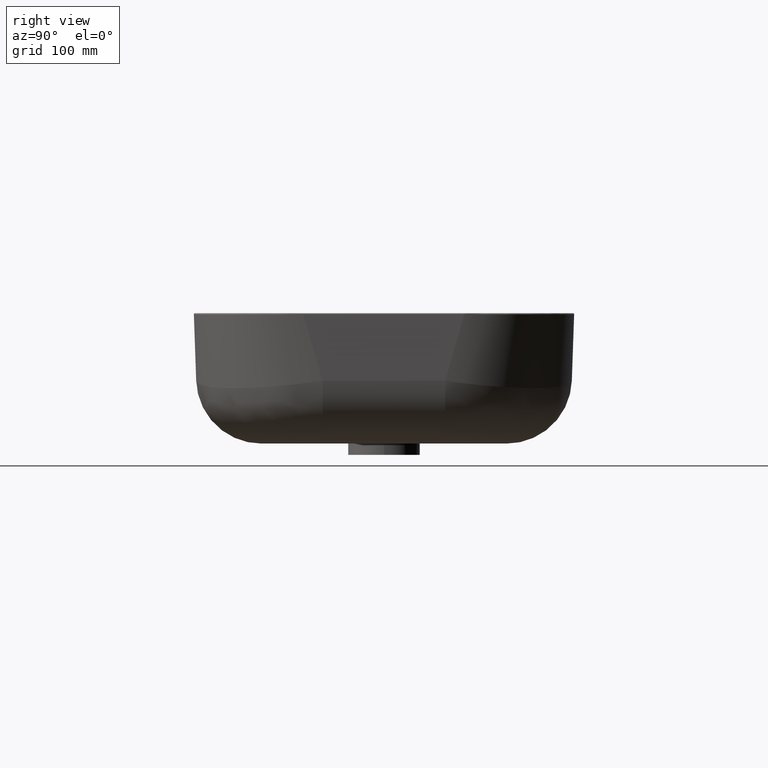
[diagram: clean part render]
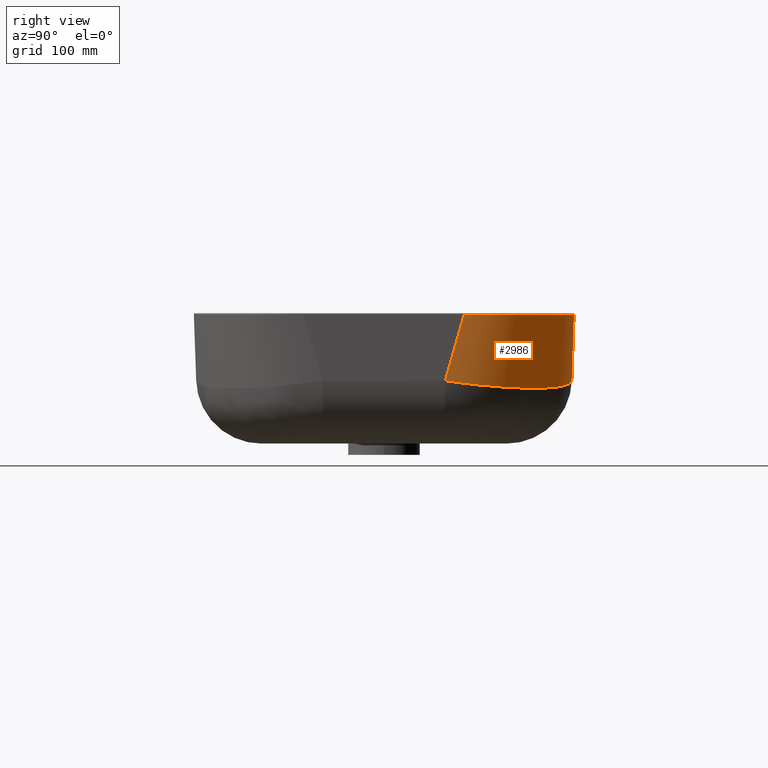
[diagram: same view with one face highlighted and labeled with its STEP entity id]
A machine part, right view. The second image highlights one B-rep face of the part: STEP entity #2986.
In plain terms, the highlighted face is a freeform B-spline surface patch.
Its self-contained STEP definition (entity closure, byte-faithful):
#40 = CARTESIAN_POINT ( 'NONE',  ( 494.6226616274452681, 343.5130189848187001, 118.8836847969458290 ) ) ;
#205 = CARTESIAN_POINT ( 'NONE',  ( 553.5496829545714945, 284.6593909081880156, 118.8835063547442132 ) ) ;
#234 = CARTESIAN_POINT ( 'NONE',  ( 558.0076850953369103, 268.8050176214856606, 118.9151225033961907 ) ) ;
#257 = EDGE_CURVE ( 'NONE', #2701, #626, #3237, .T. ) ;
#265 = CARTESIAN_POINT ( 'NONE',  ( 554.6486898817103111, 281.5869382758809252, 118.8888849249055255 ) ) ;
#274 = CARTESIAN_POINT ( 'NONE',  ( 514.9521749080662403, 333.1398776583613426, 118.8562121057850192 ) ) ;
#322 = CARTESIAN_POINT ( 'NONE',  ( 552.0542123512141188, 288.2907473426280944, 118.8775967239417213 ) ) ;
#406 = CARTESIAN_POINT ( 'NONE',  ( 508.1322332380302669, 337.2958069788901412, 118.8634930613243768 ) ) ;
#436 = CARTESIAN_POINT ( 'NONE',  ( 478.2900577840493384, 348.1086176416018816, 118.9162714177092965 ) ) ;
#465 = CARTESIAN_POINT ( 'NONE',  ( 474.7613127909557988, 348.7294001131896835, 118.9243044122849966 ) ) ;
#475 = CARTESIAN_POINT ( 'NONE',  ( 551.5709954009269040, 179.9179236217250093, -121.3751106219060034 ) ) ;
#507 = CARTESIAN_POINT ( 'NONE',  ( 523.5824823054120998, 313.5823857226351379, 50.76123870990382159 ) ) ;
#557 = CARTESIAN_POINT ( 'NONE',  ( 506.2542628416718458, 327.9682451882743521, 51.18840075130933087 ) ) ;
#622 = CARTESIAN_POINT ( 'NONE',  ( 552.2657158202753180, 287.7819637615290844, 118.8784200418203909 ) ) ;
#626 = VERTEX_POINT ( 'NONE', #2698 ) ;
#676 = CARTESIAN_POINT ( 'NONE',  ( 540.6583188638106776, 308.5313438726268487, 118.8531681511065727 ) ) ;
#685 = CARTESIAN_POINT ( 'NONE',  ( 514.5281452977825438, 333.4198053468054468, 118.8566081743460927 ) ) ;
#735 = CARTESIAN_POINT ( 'NONE',  ( 556.0871954728741002, 276.8280659342074728, 118.8980893763537807 ) ) ;
#750 = CARTESIAN_POINT ( 'NONE',  ( 464.6210184500533842, 346.0383391607072099, 54.66286024756106343 ) ) ;
#765 =( BOUNDED_SURFACE ( )  B_SPLINE_SURFACE ( 1, 2, ( 
 ( #3723, #2454, #3313 ),
 ( #475, #4588, #2954 ) ),
 .UNSPECIFIED., .F., .F., .F. ) 
 B_SPLINE_SURFACE_WITH_KNOTS ( ( 2, 2 ),
 ( 3, 3 ),
 ( -96.27114962209380167, 262.2560246895910154 ),
 ( 0.0000000000000000000, 1233.219101284679937 ),
 .UNSPECIFIED. ) 
 GEOMETRIC_REPRESENTATION_ITEM ( )  RATIONAL_B_SPLINE_SURFACE ( (
 ( 1.000000000000000000, 0.7075372692918450168, 1.000000000000000000),
 ( 1.000000000000000000, 0.7075372692916830353, 1.000000000000000000) ) ) 
 REPRESENTATION_ITEM ( '' )  SURFACE ( )  );
#793 = CARTESIAN_POINT ( 'NONE',  ( 497.2887189319681056, 342.4681027576601764, 118.8792236088690970 ) ) ;
#822 = CARTESIAN_POINT ( 'NONE',  ( 503.7456869461508404, 339.6321721755533076, 118.8691502923881700 ) ) ;
#844 = CARTESIAN_POINT ( 'NONE',  ( 458.8864686369830110, 349.9638605131640361, 118.9651005014720084 ) ) ;
#870 = CARTESIAN_POINT ( 'NONE',  ( 475.5459616438919852, 348.6029774322093431, 118.9224908625455441 ) ) ;
#966 = CARTESIAN_POINT ( 'NONE',  ( 556.0383248771864828, 254.6210755530328811, 54.66285166549096175 ) ) ;
#1032 = CARTESIAN_POINT ( 'NONE',  ( 557.6125332656332603, 270.7045013069488277, 118.9109291053011930 ) ) ;
#1059 = CARTESIAN_POINT ( 'NONE',  ( 558.0414920261345060, 268.6338744635806393, 118.9155044960567693 ) ) ;
#1089 = CARTESIAN_POINT ( 'NONE',  ( 557.9712768202771258, 268.9878714406821700, 118.9147150126086956 ) ) ;
#1118 = CARTESIAN_POINT ( 'NONE',  ( 558.0335226708189111, 268.6743293922990574, 118.9154141519252050 ) ) ;
#1148 = CARTESIAN_POINT ( 'NONE',  ( 542.6228237090386983, 305.7251266379826689, 118.8555088241444793 ) ) ;
#1206 = CARTESIAN_POINT ( 'NONE',  ( 497.5877989810080066, 342.3456993801636372, 118.8787352075023165 ) ) ;
#1231 = CARTESIAN_POINT ( 'NONE',  ( 485.2417860426663196, 346.5666942653826936, 118.9011562423023634 ) ) ;
#1256 = CARTESIAN_POINT ( 'NONE',  ( 535.0077419820398745, 315.6850333066621488, 118.8490037897670533 ) ) ;
#1314 = CARTESIAN_POINT ( 'NONE',  ( 513.4164755462941230, 334.1386975105848478, 118.8576830433702725 ) ) ;
#1331 = EDGE_CURVE ( 'NONE', #3665, #3819, #1660, .T. ) ;
#1448 = CARTESIAN_POINT ( 'NONE',  ( 551.5188123380273737, 289.5439922137654207, 118.8756040972147758 ) ) ;
#1477 = CARTESIAN_POINT ( 'NONE',  ( 542.9122344967258869, 305.2941050876492568, 118.8558998350976026 ) ) ;
#1546 = CARTESIAN_POINT ( 'NONE',  ( 509.5690219032090909, 336.4841801439258688, 118.8617808539033405 ) ) ;
#1644 = CARTESIAN_POINT ( 'NONE',  ( 490.0006568275196059, 345.1281886419528178, 118.8919521247005662 ) ) ;
#1660 = B_SPLINE_CURVE_WITH_KNOTS ( 'NONE', 1,
 ( #3271, #2328 ),
 .UNSPECIFIED., .F., .F.,
 ( 2, 2 ),
 ( 4.837289621629359715, 70.23520438177681058 ),
 .UNSPECIFIED. ) ;
#1677 = CARTESIAN_POINT ( 'NONE',  ( 528.1360905235212613, 322.7860613039947566, 118.8484275946211568 ) ) ;
#1714 = CARTESIAN_POINT ( 'NONE',  ( 557.7909938924736934, 239.1715185141400468, 56.72613767485887593 ) ) ;
#1730 = CARTESIAN_POINT ( 'NONE',  ( 512.3805834213817434, 334.7925271765995490, 118.8587257129376695 ) ) ;
#1737 = EDGE_CURVE ( 'NONE', #626, #3819, #2718, .T. ) ;
#1892 = CARTESIAN_POINT ( 'NONE',  ( 559.9635201121262753, 252.3906706783388643, 118.9553526911204528 ) ) ;
#1920 = CARTESIAN_POINT ( 'NONE',  ( 552.1954668353835132, 287.9516978694013005, 118.8781446380375542 ) ) ;
#1947 = CARTESIAN_POINT ( 'NONE',  ( 557.1420622434551433, 272.7671636856327382, 118.9064801550665038 ) ) ;
#1953 = CARTESIAN_POINT ( 'NONE',  ( 458.8864686369830110, 349.9638605131640361, 118.9651005014720084 ) ) ;
#1956 = CARTESIAN_POINT ( 'NONE',  ( 515.0368032757321544, 333.0837231165843946, 118.8561337326524665 ) ) ;
#2006 = CARTESIAN_POINT ( 'NONE',  ( 552.3157403096754479, 287.6606407512855412, 118.8786173398201100 ) ) ;
#2095 = CARTESIAN_POINT ( 'NONE',  ( 520.5605787544358236, 329.2078228566676330, 118.8515428468059554 ) ) ;
#2120 = CARTESIAN_POINT ( 'NONE',  ( 495.7518755682109486, 343.0799036015534966, 118.8817720741706694 ) ) ;
#2148 = CARTESIAN_POINT ( 'NONE',  ( 478.5391298868029253, 348.0600940882452505, 118.9157142640219860 ) ) ;
#2161 = CARTESIAN_POINT ( 'NONE',  ( 537.9682155095199505, 296.2543244950546750, 51.18839592945193573 ) ) ;
#2307 = CARTESIAN_POINT ( 'NONE',  ( 542.9993555035312056, 305.1636029571741915, 118.8560194526906173 ) ) ;
#2328 = CARTESIAN_POINT ( 'NONE',  ( 557.8316307937110423, 231.3648263209950073, 57.90603019785000072 ) ) ;
#2332 = CARTESIAN_POINT ( 'NONE',  ( 541.1438508965341043, 307.8577951968727575, 118.8536931192411998 ) ) ;
#2359 = CARTESIAN_POINT ( 'NONE',  ( 550.6656147524814742, 291.4546139879212774, 118.8726623002384173 ) ) ;
#2368 = CARTESIAN_POINT ( 'NONE',  ( 514.8251463354354200, 333.2240278610818223, 118.8563300701727741 ) ) ;
#2390 = CARTESIAN_POINT ( 'NONE',  ( 542.9699103553087980, 305.2077601802622553, 118.8559788972730757 ) ) ;
#2418 = CARTESIAN_POINT ( 'NONE',  ( 557.3360852748401157, 271.9451337426970099, 118.9082360458653369 ) ) ;
#2436 = CARTESIAN_POINT ( 'NONE',  ( 486.4346659688747536, 338.9538922241155205, 52.48019965371114637 ) ) ;
#2454 = CARTESIAN_POINT ( 'NONE',  ( 563.1663778646827723, 353.1663778646840797, 210.6731985225079029 ) ) ;
#2477 = CARTESIAN_POINT ( 'NONE',  ( 476.7096174260833550, 348.4017600691870484, 118.9198347562197569 ) ) ;
#2534 = CARTESIAN_POINT ( 'NONE',  ( 478.6089529473249513, 348.0463930236344368, 118.9155582410128744 ) ) ;
#2578 = ORIENTED_EDGE ( 'NONE', *, *, #4238, .T. ) ;
#2698 = CARTESIAN_POINT ( 'NONE',  ( 441.3648262423299684, 347.8316307937089960, 57.90603019778689742 ) ) ;
#2701 = VERTEX_POINT ( 'NONE', #4722 ) ;
#2718 = B_SPLINE_CURVE_WITH_KNOTS ( 'NONE', 3,
 ( #5368, #2857, #750, #2436, #557, #507, #2161, #4772, #966, #1714, #4285 ),
 .UNSPECIFIED., .F., .F.,
 ( 4, 1, 1, 1, 1, 1, 1, 1, 4 ),
 ( 0.0000000000000000000, 0.1250000000000047740, 0.2500000000000096589, 0.3750000000000155986, 0.5000000000000204281, 0.6250000000000354161, 0.7500000000000489608, 0.8750000000000640599, 1.000000000000000000 ),
 .UNSPECIFIED. ) ;
#2726 = CARTESIAN_POINT ( 'NONE',  ( 551.7686868380682199, 288.9671570488660564, 118.8765126357600508 ) ) ;
#2739 = ORIENTED_EDGE ( 'NONE', *, *, #1737, .F. ) ;
#2753 = CARTESIAN_POINT ( 'NONE',  ( 559.1213179907888389, 262.4121247874055598, 118.9296786734247462 ) ) ;
#2810 = CARTESIAN_POINT ( 'NONE',  ( 548.8533135957518425, 295.2080066537104699, 118.8672660093028384 ) ) ;
#2841 = CARTESIAN_POINT ( 'NONE',  ( 541.8596611147012254, 306.8383522975662459, 118.8545381137923300 ) ) ;
#2857 = CARTESIAN_POINT ( 'NONE',  ( 449.1715551292240320, 347.7910034381376931, 56.72612123981357968 ) ) ;
#2881 = CARTESIAN_POINT ( 'NONE',  ( 557.8316307937110423, 231.3648263209950073, 57.90603019785000072 ) ) ;
#2896 = CARTESIAN_POINT ( 'NONE',  ( 517.8872696435065563, 331.1861292577908671, 118.8535083935210679 ) ) ;
#2924 = CARTESIAN_POINT ( 'NONE',  ( 500.7195065460217052, 341.0581320849710210, 118.8736335815106884 ) ) ;
#2946 = CARTESIAN_POINT ( 'NONE',  ( 538.1577973275230988, 311.8416999153897677, 118.8509096011185306 ) ) ;
#2954 = CARTESIAN_POINT ( 'NONE',  ( 389.9179236217249809, 341.5709954009259945, -121.3751106219060034 ) ) ;
#2975 = CARTESIAN_POINT ( 'NONE',  ( 496.3137888270611597, 342.8605040412963376, 118.8808302352220494 ) ) ;
#2986 = ADVANCED_FACE ( 'NONE', ( #4222 ), #765, .T. ) ;
#3002 = CARTESIAN_POINT ( 'NONE',  ( 513.9317480685288047, 333.8090546643852008, 118.8571759632338285 ) ) ;
#3134 = CARTESIAN_POINT ( 'NONE',  ( 559.7833003935724037, 255.8116283459109752, 118.9462020281323902 ) ) ;
#3161 = CARTESIAN_POINT ( 'NONE',  ( 558.6398054707607344, 265.5915615781140104, 118.9223008071109717 ) ) ;
#3190 = CARTESIAN_POINT ( 'NONE',  ( 551.0123028177688411, 290.6936088215713312, 118.8738158854996385 ) ) ;
#3226 = CARTESIAN_POINT ( 'NONE',  ( 515.0781280057494769, 333.0562582621719798, 118.8560955658471840 ) ) ;
#3237 = B_SPLINE_CURVE_WITH_KNOTS ( 'NONE', 1,
 ( #1953, #3336 ),
 .UNSPECIFIED., .F., .F.,
 ( 2, 2 ),
 ( 4.837289615865450365, 70.23520438185100545 ),
 .UNSPECIFIED. ) ;
#3248 = CARTESIAN_POINT ( 'NONE',  ( 542.8256207826480022, 305.4235545718742628, 118.8557816562108940 ) ) ;
#3271 = CARTESIAN_POINT ( 'NONE',  ( 559.9638605130840006, 248.8864686193730051, 118.9651004991659846 ) ) ;
#3313 = CARTESIAN_POINT ( 'NONE',  ( 485.9758020591129934, 353.2603940462009859, 213.3654697091540129 ) ) ;
#3334 = CARTESIAN_POINT ( 'NONE',  ( 497.5197680262630797, 342.3736195879080242, 118.8788461373718661 ) ) ;
#3336 = CARTESIAN_POINT ( 'NONE',  ( 441.3648262423299684, 347.8316307937089960, 57.90603019778689742 ) ) ;
#3361 = CARTESIAN_POINT ( 'NONE',  ( 472.3819928271872755, 349.0837797202744923, 118.9298895673267680 ) ) ;
#3389 = CARTESIAN_POINT ( 'NONE',  ( 462.3906144750641829, 349.9635200938794810, 118.9553521686295738 ) ) ;
#3421 = CARTESIAN_POINT ( 'NONE',  ( 465.8115412824737405, 349.7833061366040397, 118.9462009569502214 ) ) ;
#3560 = CARTESIAN_POINT ( 'NONE',  ( 559.9638605130840006, 248.8864686193730051, 118.9651004991659846 ) ) ;
#3571 = CARTESIAN_POINT ( 'NONE',  ( 559.9638605130840006, 248.8864686193730051, 118.9651004991659846 ) ) ;
#3601 = CARTESIAN_POINT ( 'NONE',  ( 542.2144446044781034, 306.3263511536973169, 118.8549749751569351 ) ) ;
#3632 = CARTESIAN_POINT ( 'NONE',  ( 549.5992684683471907, 293.7204239596599677, 118.8693250603233196 ) ) ;
#3665 = VERTEX_POINT ( 'NONE', #3560 ) ;
#3723 = CARTESIAN_POINT ( 'NONE',  ( 563.2603940462021228, 275.9758020591129934, 213.3654697091530181 ) ) ;
#3770 = CARTESIAN_POINT ( 'NONE',  ( 525.6850160354971422, 325.0077566532808646, 118.8490026354197937 ) ) ;
#3798 = CARTESIAN_POINT ( 'NONE',  ( 496.9645501222450434, 342.5996984653979780, 118.8797553124096993 ) ) ;
#3819 = VERTEX_POINT ( 'NONE', #2881 ) ;
#3824 = CARTESIAN_POINT ( 'NONE',  ( 478.5983493106840569, 348.0484761908823543, 118.9155819312740192 ) ) ;
#3832 = ORIENTED_EDGE ( 'NONE', *, *, #257, .F. ) ;
#3928 = B_SPLINE_CURVE_WITH_KNOTS ( 'NONE', 3,
 ( #844, #3389, #3421, #4986, #3361, #465, #870, #2477, #5460, #4242, #436, #5329, #2148, #5095, #3824, #2534, #4631, #1231, #1644, #4214, #4054, #40, #2120, #2975, #3798, #793, #4160, #3334, #5013, #1206, #2924, #822, #406, #1546, #4653, #1730, #1314, #3002, #685, #2368, #274, #1956, #3226, #2896, #2095, #3770, #1677, #5043, #1256, #2946, #3990, #676, #2332, #2841, #3601, #1148, #3248, #1477, #2390, #2307, #5292, #4437, #2810, #3632, #2359, #3190, #1448, #2726, #322, #1920, #622, #4525, #2006, #4046, #205, #265, #735, #4811, #1947, #2418, #1032, #5233, #4867, #1089, #234, #4102, #1118, #4930, #1059, #3161, #2753, #3134, #1892, #3571 ),
 .UNSPECIFIED., .F., .F.,
 ( 4, 2, 2, 2, 1, 1, 1, 1, 1, 2, 2, 2, 2, 2, 1, 1, 1, 1, 2, 2, 2, 2, 2, 1, 1, 1, 2, 2, 2, 2, 2, 2, 2, 1, 1, 1, 2, 2, 2, 2, 2, 1, 1, 1, 1, 2, 2, 2, 2, 2, 1, 1, 1, 1, 1, 2, 2, 2, 4 ),
 ( 0.0000000000000000000, 0.06250000000001298961, 0.09375000000001897094, 0.1093750000000219547, 0.1171875000000229122, 0.1210937500000228290, 0.1230468750000234535, 0.1240234375000244110, 0.1245117187500250078, 0.1247558593750257433, 0.1250000000000264788, 0.1875000000002275402, 0.2187500000003282374, 0.2343750000003785861, 0.2421875000004035661, 0.2460937500004153344, 0.2480468750004212186, 0.2490234375004246881, 0.2495117187504263812, 0.2500000000004281020, 0.3125000000006225020, 0.3437500000007194800, 0.3593750000007679968, 0.3671875000007931433, 0.3710937500008056888, 0.3730468750008129053, 0.3740234375008152923, 0.3750000000008177348, 0.4375000000008794077, 0.5000000000009410250, 0.5625000000010026424, 0.5937500000010339507, 0.6093750000010494938, 0.6171875000010561552, 0.6210937500010598189, 0.6230468750010614842, 0.6240234375010623724, 0.6250000000010632606, 0.6875000000010936807, 0.7187500000011094459, 0.7343750000011176615, 0.7421875000011221024, 0.7460937500011239898, 0.7480468750011247669, 0.7490234375011252110, 0.7495117187511258772, 0.7500000000011265433, 0.8125000000010500489, 0.8437500000010123014, 0.8593750000009928725, 0.8671875000009828804, 0.8710937500009786616, 0.8730468750009762191, 0.8740234375009752199, 0.8745117187509739987, 0.8747558593759727774, 0.8750000000009714451, 0.9375000000004857226, 1.000000000000000000 ),
 .UNSPECIFIED. ) ;
#3990 = CARTESIAN_POINT ( 'NONE',  ( 539.1774400293483041, 310.5328651814870113, 118.8517150369399786 ) ) ;
#4046 = CARTESIAN_POINT ( 'NONE',  ( 552.3262280376853823, 287.6351587226877768, 118.8786588242024038 ) ) ;
#4054 = CARTESIAN_POINT ( 'NONE',  ( 493.8626675129980867, 343.7941834388552707, 118.8849987560672332 ) ) ;
#4102 = CARTESIAN_POINT ( 'NONE',  ( 558.0257867794261983, 268.7135429971520466, 118.9153266043130941 ) ) ;
#4160 = CARTESIAN_POINT ( 'NONE',  ( 497.4504990414918666, 342.4020087955491363, 118.8789591691233056 ) ) ;
#4214 = CARTESIAN_POINT ( 'NONE',  ( 491.5620132494115637, 344.6137432139668135, 118.8890680178302546 ) ) ;
#4222 = FACE_OUTER_BOUND ( 'NONE', #5031, .T. ) ;
#4238 = EDGE_CURVE ( 'NONE', #2701, #3665, #3928, .T. ) ;
#4242 = CARTESIAN_POINT ( 'NONE',  ( 477.9570798468118369, 348.1726266373535736, 118.9170177632249192 ) ) ;
#4285 = CARTESIAN_POINT ( 'NONE',  ( 557.8316307937110423, 231.3648263209950073, 57.90603019785000072 ) ) ;
#4437 = CARTESIAN_POINT ( 'NONE',  ( 546.5169429959125864, 299.5945471996547553, 118.8616095662163445 ) ) ;
#4525 = CARTESIAN_POINT ( 'NONE',  ( 552.2957413465206855, 287.7091758990232506, 118.8785383797437589 ) ) ;
#4588 = CARTESIAN_POINT ( 'NONE',  ( 551.3743455364581223, 341.3743455364587476, -127.0064259488721063 ) ) ;
#4631 = CARTESIAN_POINT ( 'NONE',  ( 481.9691370129884831, 347.3855660899090481, 118.9080521753153192 ) ) ;
#4653 = CARTESIAN_POINT ( 'NONE',  ( 511.6828580610509789, 335.2211382635986183, 118.8594589021046630 ) ) ;
#4722 = CARTESIAN_POINT ( 'NONE',  ( 458.8864686369830110, 349.9638605131640361, 118.9651005014720084 ) ) ;
#4772 = CARTESIAN_POINT ( 'NONE',  ( 548.9539205021879980, 276.4346019383457929, 52.48020898325233929 ) ) ;
#4811 = CARTESIAN_POINT ( 'NONE',  ( 556.5317490825166260, 275.2168452773458966, 118.9013415502494411 ) ) ;
#4867 = CARTESIAN_POINT ( 'NONE',  ( 557.8976420605957856, 269.3531951137038618, 118.9139029041860312 ) ) ;
#4930 = CARTESIAN_POINT ( 'NONE',  ( 558.0386750467140473, 268.6481847269911327, 118.9154725337982512 ) ) ;
#4986 = CARTESIAN_POINT ( 'NONE',  ( 470.7619103495150057, 349.2868239870488196, 118.9338078500126130 ) ) ;
#5013 = CARTESIAN_POINT ( 'NONE',  ( 497.5659328120251530, 342.3546794250824519, 118.8787708491033897 ) ) ;
#5031 = EDGE_LOOP ( 'NONE', ( #2578, #5220, #2739, #3832 ) ) ;
#5043 = CARTESIAN_POINT ( 'NONE',  ( 532.7860386833825714, 318.1361148196629074, 118.8484282190971726 ) ) ;
#5095 = CARTESIAN_POINT ( 'NONE',  ( 478.5746642512347080, 348.0531254417143714, 118.9156348539766697 ) ) ;
#5220 = ORIENTED_EDGE ( 'NONE', *, *, #1331, .T. ) ;
#5233 = CARTESIAN_POINT ( 'NONE',  ( 557.7471111445721590, 270.0822886931486551, 118.9122904056625032 ) ) ;
#5292 = CARTESIAN_POINT ( 'NONE',  ( 544.8278531508857441, 302.4169964161867483, 118.8585492701683535 ) ) ;
#5329 = CARTESIAN_POINT ( 'NONE',  ( 478.4561689720077311, 348.0763176077037997, 118.9158997367226647 ) ) ;
#5368 = CARTESIAN_POINT ( 'NONE',  ( 441.3648262423299684, 347.8316307937089960, 57.90603019778689742 ) ) ;
#5460 = CARTESIAN_POINT ( 'NONE',  ( 477.2881168627422426, 348.2982559784358614, 118.9185227106239466 ) ) ;